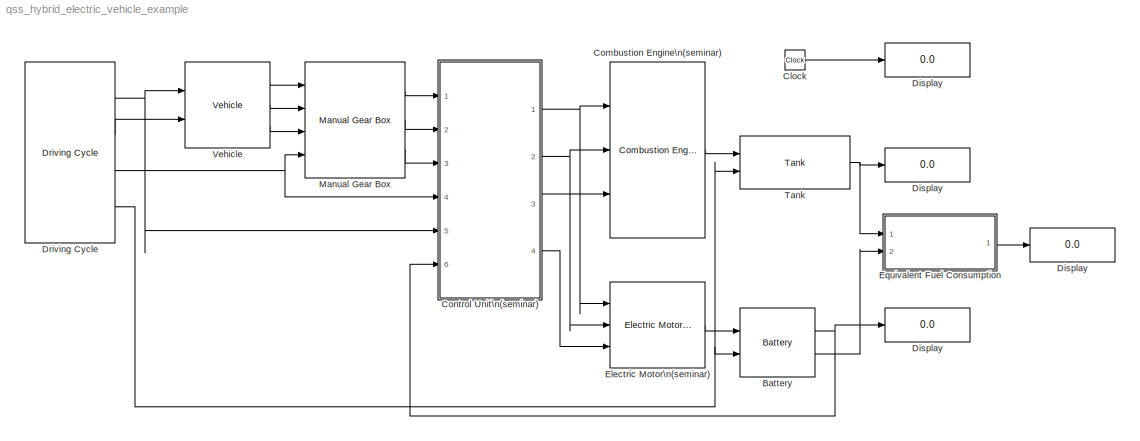
MODEL qss_hybrid_electric_vehicle_example
KIND model
BLOCK [Display]    Display   
  Decimation = 1
  Lockdown = off
  Ports = [1]
  SID = 67
BLOCK [Display]   Display  
  Decimation = 1
  Lockdown = off
  Ports = [1]
  SID = 27
BLOCK [Display]  Display 
  Decimation = 1
  Lockdown = off
  Ports = [1]
  SID = 29
BLOCK [Reference] Battery  REF=qss_tb_library/Energy Buffer/Battery  (lib defined in mdl_a75e96b0ff2a, mdl_aad2a3137e65)
  I_0 = 10
  Ports = [2, 2]
  Q_BT_IC_rel = 50
  SID = 21
  SourceBlock = qss_tb_library/Energy Buffer/Battery
  SourceType = Battery
  Tag = battery
  t_ch = 2
BLOCK [Clock] Clock
  SID = 30
BLOCK [Reference] Combustion Engine\n(seminar)  REF=qss_tb_library/Energy Converter/Combustion Engine\n(consumption map)  (lib defined in mdl_a75e96b0ff2a, mdl_aad2a3137e65)
  ENABLE_FUEL_CUTOFF = on
  P_CE_cutoff = 0
  P_CE_idle = 8000
  P_aux = 0
  Ports = [3, 1]
  SID = 16
  SourceBlock = qss_tb_library/Energy Converter/Combustion Engine\n(consumption map)
  SourceType = Combustion Engine (based on consumption map)
  T_CE_cutoff = 5
  Tag = combustion engine
  theta_CE = 0.2
  w_CE_idle = 105
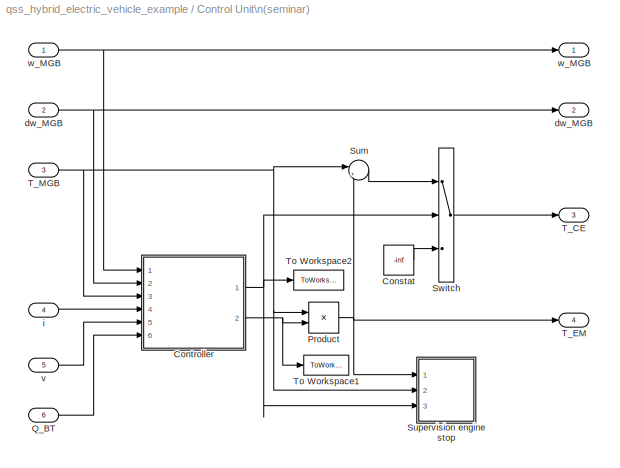
BLOCK [SubSystem] Control Unit\n(seminar)
  FunctionWithSeparateData = off
  MaskDescription = This block gives the user the opportunity to design his/her own control unit. \n\nThe user can define the inputs and outputs  by himself/herself.\n
  MaskHideContents = off
  MaskIconFrame = on
  MaskIconOpaque = on
  MaskIconRotate = none
  MaskIconUnits = autoscale
  MaskInitialization = %init_control_unit;
  MaskPortRotate = default
  MaskType = Control Unit
  MinAlgLoopOccurrences = off
  Opaque = off
  Ports = [6, 4]
  PropExecContextOutsideSubsystem = off
  RTWSystemCode = Auto
  RequestExecContextInheritance = off
  SID = 17
  Tag = control unit
BLOCK [Outport] Control Unit\n(seminar)/ dw_MGB 
  IconDisplay = Port number
  InitialOutput = 0
  Port = 2
  SID = 61
BLOCK [Outport] Control Unit\n(seminar)/ w_MGB 
  IconDisplay = Port number
  InitialOutput = 0
  SID = 60
BLOCK [Constant] Control Unit\n(seminar)/Constat
  SID = 36
  Value = -inf
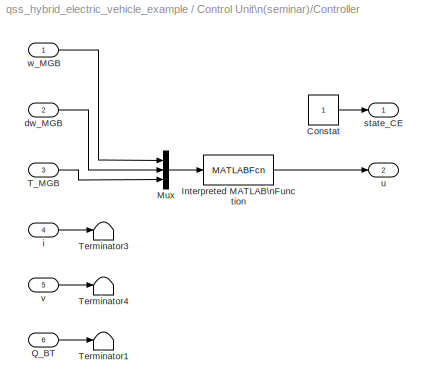
BLOCK [SubSystem] Control Unit\n(seminar)/Controller
  FunctionWithSeparateData = off
  MaskHideContents = off
  MinAlgLoopOccurrences = off
  Opaque = off
  Ports = [6, 2]
  PropExecContextOutsideSubsystem = off
  RTWSystemCode = Auto
  RequestExecContextInheritance = off
  SID = 110
  TreatAsAtomicUnit = on
BLOCK [Constant] Control Unit\n(seminar)/Controller/Constat
  SID = 115
BLOCK [MATLABFcn] Control Unit\n(seminar)/Controller/Interpreted MATLAB\nFunction
  MATLABFcn = controller
  Ports = [1, 1]
  SID = 134
BLOCK [Mux] Control Unit\n(seminar)/Controller/Mux
  DisplayOption = bar
  Inputs = 3
  Ports = [3, 1]
  SID = 135
BLOCK [Inport] Control Unit\n(seminar)/Controller/Q_BT
  IconDisplay = Port number
  Port = 6
  SID = 128
BLOCK [Inport] Control Unit\n(seminar)/Controller/T_MGB
  IconDisplay = Port number
  Port = 3
  SID = 113
BLOCK [Terminator] Control Unit\n(seminar)/Controller/Terminator1
  SID = 136
BLOCK [Terminator] Control Unit\n(seminar)/Controller/Terminator3
  SID = 120
BLOCK [Terminator] Control Unit\n(seminar)/Controller/Terminator4
  SID = 126
BLOCK [Inport] Control Unit\n(seminar)/Controller/dw_MGB
  IconDisplay = Port number
  Port = 2
  SID = 112
BLOCK [Inport] Control Unit\n(seminar)/Controller/i
  IconDisplay = Port number
  Port = 4
  SID = 114
BLOCK [Outport] Control Unit\n(seminar)/Controller/state_CE
  IconDisplay = Port number
  InitialOutput = 0
  SID = 121
BLOCK [Outport] Control Unit\n(seminar)/Controller/u
  IconDisplay = Port number
  InitialOutput = 0
  Port = 2
  SID = 122
BLOCK [Inport] Control Unit\n(seminar)/Controller/v
  IconDisplay = Port number
  Port = 5
  SID = 125
BLOCK [Inport] Control Unit\n(seminar)/Controller/w_MGB
  IconDisplay = Port number
  SID = 111
BLOCK [Product] Control Unit\n(seminar)/Product
  InputSameDT = off
  OutDataTypeStr = Inherit: Inherit via internal rule
  Ports = [2, 1]
  SID = 50
  SaturateOnIntegerOverflow = off
BLOCK [Inport] Control Unit\n(seminar)/Q_BT
  IconDisplay = Port number
  Port = 6
  SID = 127
BLOCK [Sum] Control Unit\n(seminar)/Sum
  IconShape = round
  InputSameDT = off
  Inputs = |+-
  OutDataTypeStr = Inherit: Inherit via internal rule
  Ports = [2, 1]
  SID = 51
  SaturateOnIntegerOverflow = off
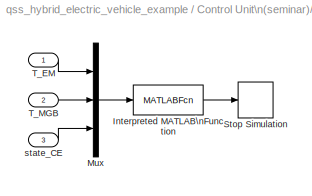
BLOCK [SubSystem] Control Unit\n(seminar)/Supervision engine stop
  FunctionWithSeparateData = off
  MaskHideContents = off
  MinAlgLoopOccurrences = off
  Opaque = off
  Ports = [3]
  PropExecContextOutsideSubsystem = off
  RTWSystemCode = Auto
  RequestExecContextInheritance = off
  SID = 52
BLOCK [MATLABFcn] Control Unit\n(seminar)/Supervision engine stop/Interpreted MATLAB\nFunction
  MATLABFcn = supervision_engine_stop
  Ports = [1, 1]
  SID = 56
BLOCK [Mux] Control Unit\n(seminar)/Supervision engine stop/Mux
  DisplayOption = bar
  Inputs = 3
  Ports = [3, 1]
  SID = 57
BLOCK [Stop] Control Unit\n(seminar)/Supervision engine stop/Stop Simulation
  SID = 58
BLOCK [Inport] Control Unit\n(seminar)/Supervision engine stop/T_EM
  IconDisplay = Port number
  SID = 53
BLOCK [Inport] Control Unit\n(seminar)/Supervision engine stop/T_MGB
  IconDisplay = Port number
  Port = 2
  SID = 54
BLOCK [Inport] Control Unit\n(seminar)/Supervision engine stop/state_CE
  IconDisplay = Port number
  Port = 3
  SID = 55
BLOCK [Switch] Control Unit\n(seminar)/Switch
  InputSameDT = off
  SID = 59
  SaturateOnIntegerOverflow = off
  Threshold = 0.5
BLOCK [Outport] Control Unit\n(seminar)/T_CE
  IconDisplay = Port number
  InitialOutput = 0
  Port = 3
  SID = 62
BLOCK [Outport] Control Unit\n(seminar)/T_EM
  IconDisplay = Port number
  InitialOutput = 0
  Port = 4
  SID = 63
BLOCK [Inport] Control Unit\n(seminar)/T_MGB
  IconDisplay = Port number
  Port = 3
  SID = 34
BLOCK [ToWorkspace] Control Unit\n(seminar)/To Workspace1
  MaxDataPoints = inf
  Ports = [1]
  SID = 107
  SampleTime = -1
  SaveFormat = Array
  VariableName = u
BLOCK [ToWorkspace] Control Unit\n(seminar)/To Workspace2
  MaxDataPoints = inf
  Ports = [1]
  SID = 108
  SampleTime = -1
  SaveFormat = Array
  VariableName = state_CE
BLOCK [Inport] Control Unit\n(seminar)/dw_MGB
  IconDisplay = Port number
  Port = 2
  SID = 33
BLOCK [Inport] Control Unit\n(seminar)/i
  IconDisplay = Port number
  Port = 4
  SID = 35
BLOCK [Inport] Control Unit\n(seminar)/v
  IconDisplay = Port number
  Port = 5
  SID = 124
BLOCK [Inport] Control Unit\n(seminar)/w_MGB
  IconDisplay = Port number
  SID = 32
BLOCK [Display] Display
  Decimation = 1
  Lockdown = off
  Ports = [1]
  SID = 18
BLOCK [Reference] Driving Cycle  REF=qss_tb_library/Driving Cycle/Driving Cycle  (lib defined in mdl_a75e96b0ff2a, mdl_aad2a3137e65)
  Ports = [0, 4]
  SID = 12
  SourceBlock = qss_tb_library/Driving Cycle/Driving Cycle
  SourceType = Driving Cycle
  Tag = cycle
  autostop = on
  cyclenr = Europe: NEDC
  stepsize = 1
BLOCK [Reference] Electric Motor\n(seminar)  REF=qss_tb_library/Energy Converter/Electric Motor\n(seminar)  (lib defined in mdl_a75e96b0ff2a, mdl_aad2a3137e65)
  P_aux = 0
  Ports = [3, 1]
  SID = 15
  SourceBlock = qss_tb_library/Energy Converter/Electric Motor\n(seminar)
  SourceType = Electric Motor
  theta_EM = 0.1
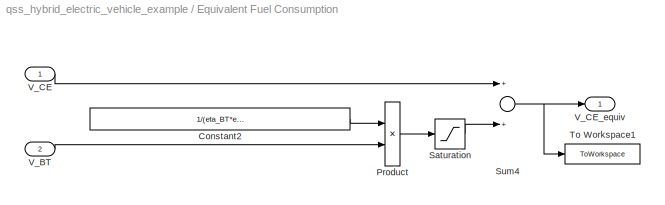
BLOCK [SubSystem] Equivalent Fuel Consumption
  FunctionWithSeparateData = off
  MaskCallbackString = ||
  MaskDescription = This block computes the equivalent fuel consumption.\n\nInput:\n=====\n	V_CE    Fuel consumption [l/100 km]\n	V_BT    Energy consumption [kWh/100 km]\n\nOutput:\n======\n	V_CE_equiv	Equivalent fuel consumption [l/100 km]\n\n
  MaskEnableString = on,on,on
  MaskHideContents = off
  MaskIconFrame = on
  MaskIconOpaque = on
  MaskIconRotate = none
  MaskIconUnits = autoscale
  MaskInitialization = init_equivalent_fuel_consumption;
  MaskPortRotate = default
  MaskPromptString = Battery efficiency [-]|Motor efficiency [-]|Engine efficiency [-]
  MaskStyleString = edit,edit,edit
  MaskToolTipString = on,on,on
  MaskTunableValueString = on,on,on
  MaskType = Equivalent Fuel Consumption
  MaskValueString = 0.9|0.8|0.25
  MaskVariables = eta_BT=@1;eta_EM=@2;eta_CE=@3;
  MaskVisibilityString = on,on,on
  MinAlgLoopOccurrences = off
  Opaque = off
  Ports = [2, 1]
  PropExecContextOutsideSubsystem = off
  RTWSystemCode = Auto
  RequestExecContextInheritance = off
  SID = 100
BLOCK [Constant] Equivalent Fuel Consumption/Constant2
  SID = 103
  Value = 1/(eta_BT*eta_EM*eta_CE*H_u/(1000*3600)*rho_f)
BLOCK [Product] Equivalent Fuel Consumption/Product
  InputSameDT = off
  OutDataTypeStr = Inherit: Inherit via internal rule
  Ports = [2, 1]
  SID = 104
  SaturateOnIntegerOverflow = off
BLOCK [Saturate] Equivalent Fuel Consumption/Saturation
  InputPortMap = u0
  LowerLimit = 0
  Ports = [1, 1]
  SID = 137
  UpperLimit = inf
BLOCK [Sum] Equivalent Fuel Consumption/Sum4
  Ports = [2, 1]
  SID = 105
BLOCK [ToWorkspace] Equivalent Fuel Consumption/To Workspace1
  MaxDataPoints = inf
  Ports = [1]
  SID = 109
  SampleTime = -1
  SaveFormat = Array
  VariableName = V_CE_equiv
BLOCK [Inport] Equivalent Fuel Consumption/V_BT
  IconDisplay = Port number
  Port = 2
  SID = 102
BLOCK [Inport] Equivalent Fuel Consumption/V_CE
  IconDisplay = Port number
  SID = 101
BLOCK [Outport] Equivalent Fuel Consumption/V_CE_equiv
  IconDisplay = Port number
  SID = 106
BLOCK [Reference] Manual Gear Box  REF=qss_tb_library/Gear System/Manual Gear Box  (lib defined in mdl_a75e96b0ff2a, mdl_aad2a3137e65)
  P_GT0 = 100
  Ports = [4, 3]
  SID = 14
  SourceBlock = qss_tb_library/Gear System/Manual Gear Box
  SourceType = Manual Gear Box
  Tag = transmission
  e_GT = 0.98
  i_1 = 3.27
  i_2 = 1.92
  i_3 = 1.26
  i_4 = 0.88
  i_5 = 0.7
  i_diff = 3.29
  w_wheel_min = 1
BLOCK [Reference] Tank  REF=qss_tb_library/Energy Source/Tank  (lib defined in mdl_a75e96b0ff2a, mdl_aad2a3137e65)
  Ports = [2, 1]
  SID = 19
  SourceBlock = qss_tb_library/Energy Source/Tank
  SourceType = Tank
  Tag = tank
  flag_cold_start = on
  fuel = Diesel
BLOCK [Reference] Vehicle  REF=qss_tb_library/Vehicle/Vehicle  (lib defined in mdl_a75e96b0ff2a, mdl_aad2a3137e65)
  A_f = 2.3
  Ports = [2, 3]
  SID = 13
  SourceBlock = qss_tb_library/Vehicle/Vehicle
  SourceType = Vehicle
  Tag = vehicle
  cw = 0.31
  d_wheel = 0.576
  m_f = 1115
  mt2m_f = 5
  mu = 0.013
NET Battery:1 ->   Display  :1, Control Unit\n(seminar):6
LINE Battery:2 -> Equivalent Fuel Consumption:2
LINE Clock:1 ->  Display :1
LINE Combustion Engine\n(seminar):1 -> Tank:1
LINE Control Unit\n(seminar)/Constat:1 -> Control Unit\n(seminar)/Switch:3
LINE Control Unit\n(seminar)/Controller/Constat:1 -> Control Unit\n(seminar)/Controller/state_CE:1
LINE Control Unit\n(seminar)/Controller/Interpreted MATLAB\nFunction:1 -> Control Unit\n(seminar)/Controller/u:1
LINE Control Unit\n(seminar)/Controller/Mux:1 -> Control Unit\n(seminar)/Controller/Interpreted MATLAB\nFunction:1
LINE Control Unit\n(seminar)/Controller/Q_BT:1 -> Control Unit\n(seminar)/Controller/Terminator1:1
LINE Control Unit\n(seminar)/Controller/T_MGB:1 -> Control Unit\n(seminar)/Controller/Mux:3
LINE Control Unit\n(seminar)/Controller/dw_MGB:1 -> Control Unit\n(seminar)/Controller/Mux:2
LINE Control Unit\n(seminar)/Controller/i:1 -> Control Unit\n(seminar)/Controller/Terminator3:1
LINE Control Unit\n(seminar)/Controller/v:1 -> Control Unit\n(seminar)/Controller/Terminator4:1
LINE Control Unit\n(seminar)/Controller/w_MGB:1 -> Control Unit\n(seminar)/Controller/Mux:1
NET Control Unit\n(seminar)/Controller:1 -> Control Unit\n(seminar)/Supervision engine stop:3, Control Unit\n(seminar)/Switch:2, Control Unit\n(seminar)/To Workspace2:1
NET Control Unit\n(seminar)/Controller:2 -> Control Unit\n(seminar)/Product:2, Control Unit\n(seminar)/To Workspace1:1
NET Control Unit\n(seminar)/Product:1 -> Control Unit\n(seminar)/Sum:2, Control Unit\n(seminar)/Supervision engine stop:1, Control Unit\n(seminar)/T_EM:1
LINE Control Unit\n(seminar)/Q_BT:1 -> Control Unit\n(seminar)/Controller:6
LINE Control Unit\n(seminar)/Sum:1 -> Control Unit\n(seminar)/Switch:1
LINE Control Unit\n(seminar)/Supervision engine stop/Interpreted MATLAB\nFunction:1 -> Control Unit\n(seminar)/Supervision engine stop/Stop Simulation:1
LINE Control Unit\n(seminar)/Supervision engine stop/Mux:1 -> Control Unit\n(seminar)/Supervision engine stop/Interpreted MATLAB\nFunction:1
LINE Control Unit\n(seminar)/Supervision engine stop/T_EM:1 -> Control Unit\n(seminar)/Supervision engine stop/Mux:1
LINE Control Unit\n(seminar)/Supervision engine stop/T_MGB:1 -> Control Unit\n(seminar)/Supervision engine stop/Mux:2
LINE Control Unit\n(seminar)/Supervision engine stop/state_CE:1 -> Control Unit\n(seminar)/Supervision engine stop/Mux:3
LINE Control Unit\n(seminar)/Switch:1 -> Control Unit\n(seminar)/T_CE:1
NET Control Unit\n(seminar)/T_MGB:1 -> Control Unit\n(seminar)/Controller:3, Control Unit\n(seminar)/Product:1, Control Unit\n(seminar)/Sum:1, Control Unit\n(seminar)/Supervision engine stop:2
NET Control Unit\n(seminar)/dw_MGB:1 -> Control Unit\n(seminar)/ dw_MGB :1, Control Unit\n(seminar)/Controller:2
LINE Control Unit\n(seminar)/i:1 -> Control Unit\n(seminar)/Controller:4
LINE Control Unit\n(seminar)/v:1 -> Control Unit\n(seminar)/Controller:5
NET Control Unit\n(seminar)/w_MGB:1 -> Control Unit\n(seminar)/ w_MGB :1, Control Unit\n(seminar)/Controller:1
NET Control Unit\n(seminar):1 -> Combustion Engine\n(seminar):1, Electric Motor\n(seminar):1
NET Control Unit\n(seminar):2 -> Combustion Engine\n(seminar):2, Electric Motor\n(seminar):2
LINE Control Unit\n(seminar):3 -> Combustion Engine\n(seminar):3
LINE Control Unit\n(seminar):4 -> Electric Motor\n(seminar):3
NET Driving Cycle:1 -> Control Unit\n(seminar):5, Vehicle:1
LINE Driving Cycle:2 -> Vehicle:2
NET Driving Cycle:3 -> Control Unit\n(seminar):4, Manual Gear Box:4
NET Driving Cycle:4 -> Battery:2, Tank:2
LINE Electric Motor\n(seminar):1 -> Battery:1
LINE Equivalent Fuel Consumption/Constant2:1 -> Equivalent Fuel Consumption/Product:1
LINE Equivalent Fuel Consumption/Product:1 -> Equivalent Fuel Consumption/Saturation:1
LINE Equivalent Fuel Consumption/Saturation:1 -> Equivalent Fuel Consumption/Sum4:2
NET Equivalent Fuel Consumption/Sum4:1 -> Equivalent Fuel Consumption/To Workspace1:1, Equivalent Fuel Consumption/V_CE_equiv:1
LINE Equivalent Fuel Consumption/V_BT:1 -> Equivalent Fuel Consumption/Product:2
LINE Equivalent Fuel Consumption/V_CE:1 -> Equivalent Fuel Consumption/Sum4:1
LINE Equivalent Fuel Consumption:1 ->    Display   :1
LINE Manual Gear Box:1 -> Control Unit\n(seminar):1
LINE Manual Gear Box:2 -> Control Unit\n(seminar):2
LINE Manual Gear Box:3 -> Control Unit\n(seminar):3
NET Tank:1 -> Display:1, Equivalent Fuel Consumption:1
LINE Vehicle:1 -> Manual Gear Box:1
LINE Vehicle:2 -> Manual Gear Box:2
LINE Vehicle:3 -> Manual Gear Box:3
note: NET lines group one-source signal fan-out (src -> all destinations, sorted); 1:1 wires keep LINE
